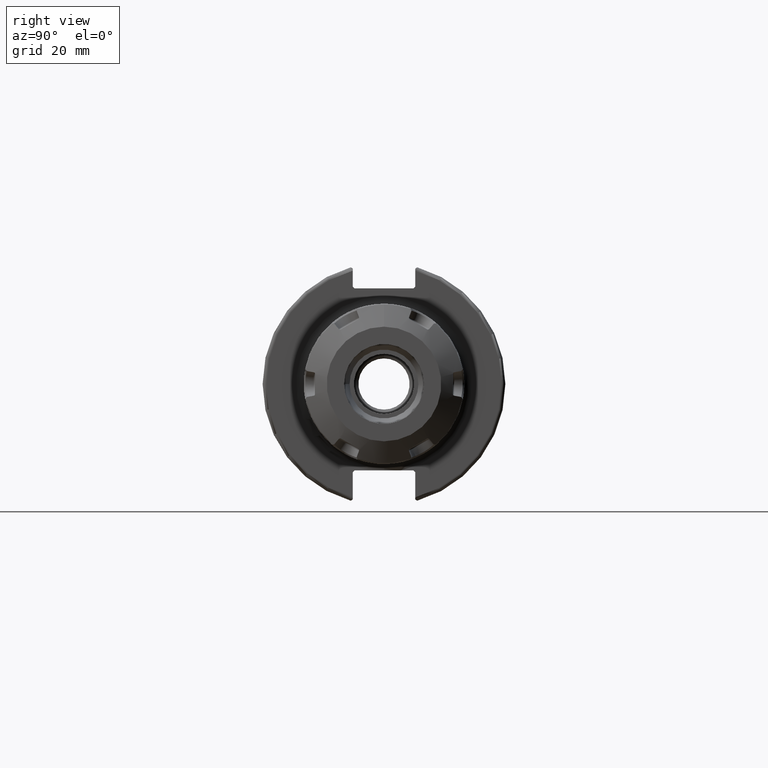
[diagram: clean part render]
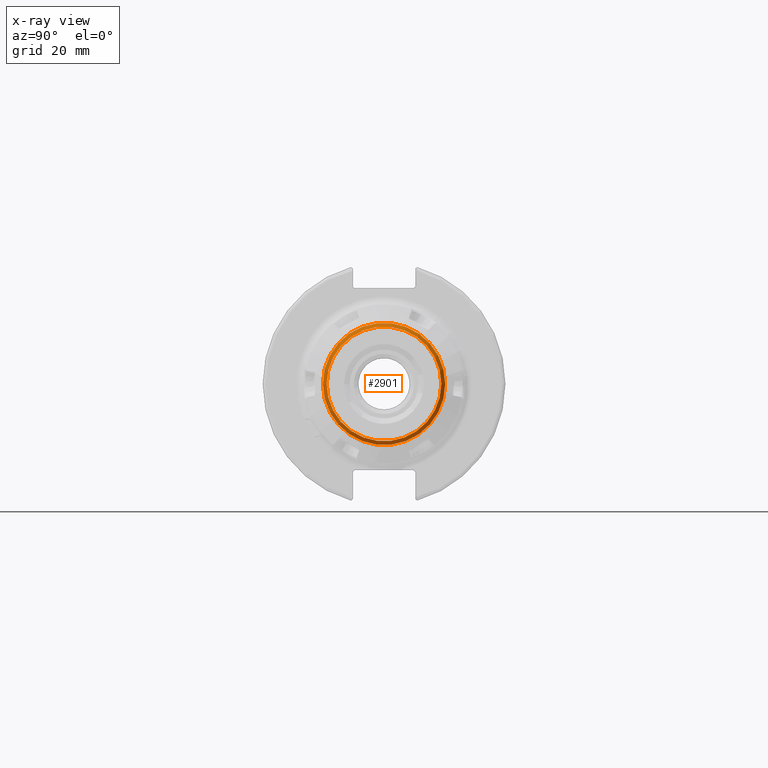
[diagram: x-ray — body ghosted, one internal face saturated and labeled with its STEP entity id]
A machine part, right view, then the same camera in x-ray: the body is ghosted and one INTERNAL B-rep face — a face not visible from any outside direction — is saturated and labeled: STEP entity #2901.
In plain terms, the highlighted conical surface has half-angle 45 deg.
Its self-contained STEP definition (entity closure, byte-faithful):
#398=FACE_OUTER_BOUND('',#568,.T.);
#568=EDGE_LOOP('',(#1995,#1996,#1997,#1998,#1999));
#759=LINE('',#4303,#946);
#946=VECTOR('',#3474,15.5);
#1133=CIRCLE('',#3147,15.);
#1134=CIRCLE('',#3148,16.);
#1135=CIRCLE('',#3149,16.);
#1268=VERTEX_POINT('',#4300);
#1269=VERTEX_POINT('',#4302);
#1270=VERTEX_POINT('',#4304);
#1553=EDGE_CURVE('',#1268,#1268,#1133,.T.);
#1554=EDGE_CURVE('',#1268,#1269,#759,.T.);
#1555=EDGE_CURVE('',#1269,#1270,#1134,.T.);
#1556=EDGE_CURVE('',#1270,#1269,#1135,.T.);
#1995=ORIENTED_EDGE('',*,*,#1553,.T.);
#1996=ORIENTED_EDGE('',*,*,#1554,.T.);
#1997=ORIENTED_EDGE('',*,*,#1555,.T.);
#1998=ORIENTED_EDGE('',*,*,#1556,.T.);
#1999=ORIENTED_EDGE('',*,*,#1554,.F.);
#2879=CONICAL_SURFACE('',#3146,15.5,0.785398163397451);
#2901=ADVANCED_FACE('',(#398),#2879,.T.);
#3146=AXIS2_PLACEMENT_3D('',#4299,#3470,#3471);
#3147=AXIS2_PLACEMENT_3D('',#4301,#3472,#3473);
#3148=AXIS2_PLACEMENT_3D('',#4305,#3475,#3476);
#3149=AXIS2_PLACEMENT_3D('',#4306,#3477,#3478);
#3470=DIRECTION('center_axis',(-1.,0.,0.));
#3471=DIRECTION('ref_axis',(0.,-1.,0.));
#3472=DIRECTION('center_axis',(-1.,0.,0.));
#3473=DIRECTION('ref_axis',(0.,-1.,0.));
#3474=DIRECTION('',(-0.707106781186546,0.707106781186549,8.65956056235495E-17));
#3475=DIRECTION('center_axis',(1.,0.,0.));
#3476=DIRECTION('ref_axis',(0.,-1.,0.));
#3477=DIRECTION('center_axis',(1.,0.,0.));
#3478=DIRECTION('ref_axis',(0.,-1.,0.));
#4299=CARTESIAN_POINT('Origin',(89.1,0.,0.));
#4300=CARTESIAN_POINT('',(89.6,15.,-1.83697019872103E-15));
#4301=CARTESIAN_POINT('Origin',(89.6,0.,0.));
#4302=CARTESIAN_POINT('',(88.6,16.,1.95943487863577E-15));
#4303=CARTESIAN_POINT('',(89.1,15.5,1.8982025386784E-15));
#4304=CARTESIAN_POINT('',(88.6,-16.,-1.95943487863577E-15));
#4305=CARTESIAN_POINT('Origin',(88.6,0.,0.));
#4306=CARTESIAN_POINT('Origin',(88.6,0.,0.));